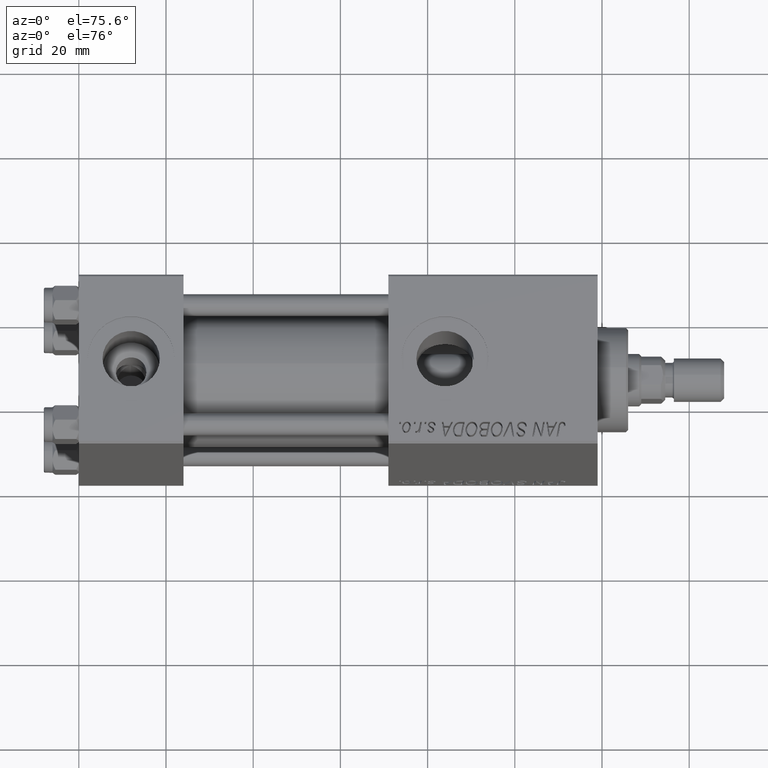
[diagram: clean part render]
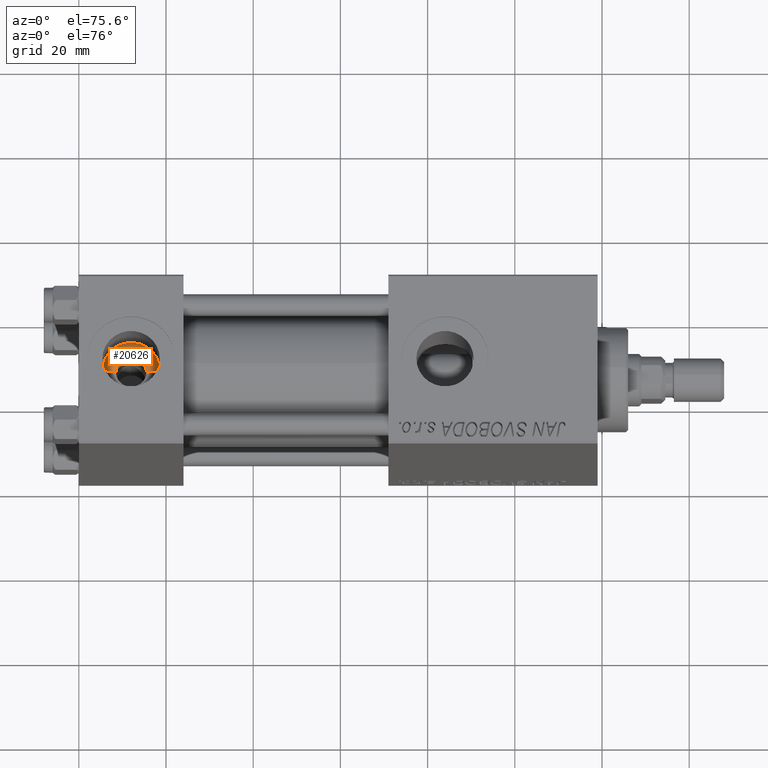
[diagram: same view with one face highlighted and labeled with its STEP entity id]
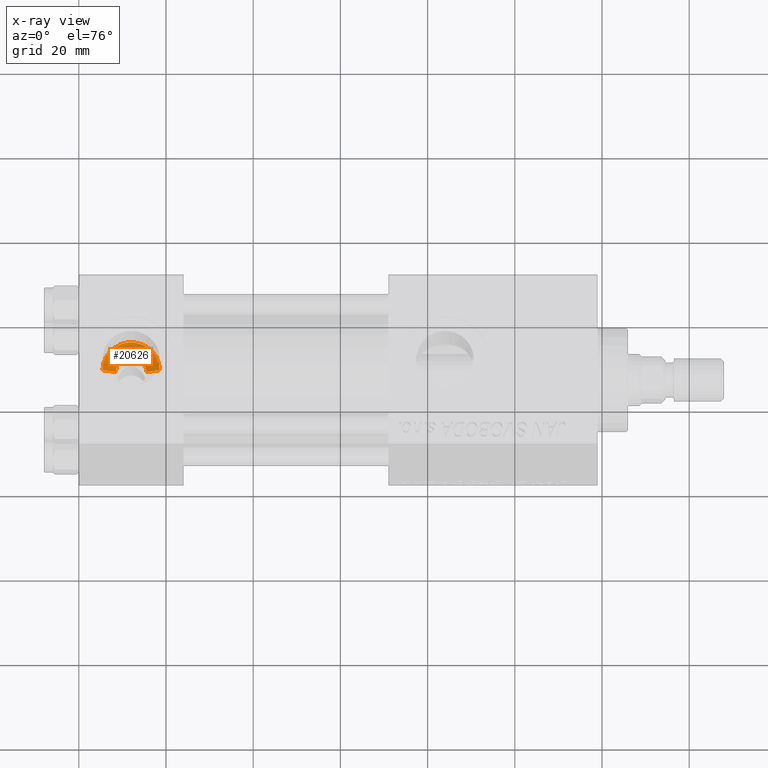
[diagram: x-ray of the same camera — body ghosted, the highlighted face saturated]
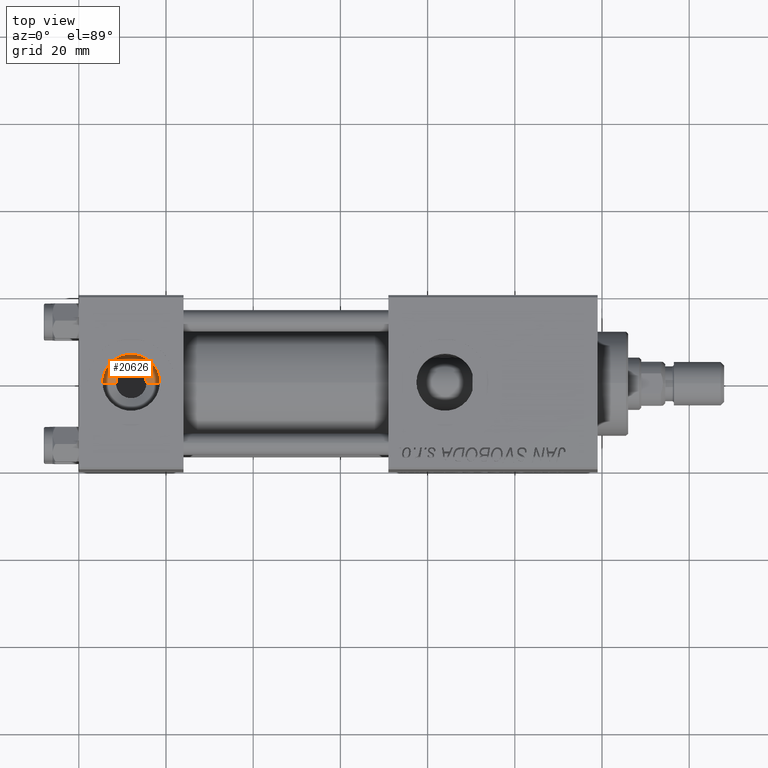
[diagram: same view with one face highlighted and labeled with its STEP entity id]
A machine part, auxiliary view. The second image highlights one B-rep face of the part: STEP entity #20626.
The next image is the same camera in x-ray: the body ghosted, the highlighted face saturated — about 0% of this face is hidden behind the body in this view.
A second angle (top view) of the same face is appended — the face is thin or edge-on in the first view.
In plain terms, the highlighted conical surface has half-angle 60.452 deg.
Its self-contained STEP definition (entity closure, byte-faithful):
#1808 = CIRCLE ( 'NONE', #10328, 6.579999999999999183 ) ;
#4128 = ORIENTED_EDGE ( 'NONE', *, *, #37716, .F. ) ;
#4518 = FACE_OUTER_BOUND ( 'NONE', #6045, .T. ) ;
#6045 = EDGE_LOOP ( 'NONE', ( #4128, #41883, #11054, #44567 ) ) ;
#7549 = CARTESIAN_POINT ( 'NONE',  ( 5.420000000000000817, 8.058175938389596335E-16, 9.165987261146492315 ) ) ;
#7982 = DIRECTION ( 'NONE',  ( 1.000000000000000000, 0.000000000000000000, 0.000000000000000000 ) ) ;
#9028 = CARTESIAN_POINT ( 'NONE',  ( 15.50000000000000000, 1.540743955509788682E-30, 7.419999999999996376 ) ) ;
#9152 = VERTEX_POINT ( 'NONE', #43090 ) ;
#10328 = AXIS2_PLACEMENT_3D ( 'NONE', #49463, #13000, #25223 ) ;
#10428 = DIRECTION ( 'NONE',  ( -0.8699429503561852961, 1.065372849594507103E-16, 0.4931523731318503412 ) ) ;
#11054 = ORIENTED_EDGE ( 'NONE', *, *, #44611, .T. ) ;
#11866 = VECTOR ( 'NONE', #10428, 1000.000000000000000 ) ;
#13000 = DIRECTION ( 'NONE',  ( -0.000000000000000000, -0.000000000000000000, -1.000000000000000000 ) ) ;
#13441 = VERTEX_POINT ( 'NONE', #19501 ) ;
#13709 = CIRCLE ( 'NONE', #43452, 3.499999999999999556 ) ;
#13732 = VECTOR ( 'NONE', #41465, 1000.000000000000000 ) ;
#14414 = CARTESIAN_POINT ( 'NONE',  ( 8.500000000000000000, 4.286263797015751879E-16, 7.419999999999996376 ) ) ;
#18233 = VERTEX_POINT ( 'NONE', #49064 ) ;
#19501 = CARTESIAN_POINT ( 'NONE',  ( 8.500000000000000000, 4.286263797015752865E-16, 7.419999999999996376 ) ) ;
#20626 = ADVANCED_FACE ( 'NONE', ( #4518 ), #30539, .F. ) ;
#22054 = DIRECTION ( 'NONE',  ( 1.000000000000000000, 0.000000000000000000, 0.000000000000000000 ) ) ;
#25202 = EDGE_CURVE ( 'NONE', #18233, #13441, #13709, .T. ) ;
#25223 = DIRECTION ( 'NONE',  ( 1.000000000000000000, 0.000000000000000000, 0.000000000000000000 ) ) ;
#27006 = LINE ( 'NONE', #9028, #13732 ) ;
#28456 = DIRECTION ( 'NONE',  ( 0.000000000000000000, 0.000000000000000000, 1.000000000000000000 ) ) ;
#30539 = CONICAL_SURFACE ( 'NONE', #43296, 3.499999999999999556, 1.055086625138361267 ) ;
#34836 = CARTESIAN_POINT ( 'NONE',  ( 12.00000000000000000, 1.540743955509788682E-30, 7.419999999999996376 ) ) ;
#37716 = EDGE_CURVE ( 'NONE', #13441, #43831, #42090, .T. ) ;
#40185 = CARTESIAN_POINT ( 'NONE',  ( 12.00000000000000000, 1.540743955509788682E-30, 7.419999999999996376 ) ) ;
#41465 = DIRECTION ( 'NONE',  ( 0.8699429503561852961, 0.000000000000000000, 0.4931523731318503412 ) ) ;
#41883 = ORIENTED_EDGE ( 'NONE', *, *, #25202, .F. ) ;
#42090 = LINE ( 'NONE', #14414, #11866 ) ;
#43090 = CARTESIAN_POINT ( 'NONE',  ( 18.57999999999999829, 1.540743955509788682E-30, 9.165987261146492315 ) ) ;
#43296 = AXIS2_PLACEMENT_3D ( 'NONE', #40185, #28456, #7982 ) ;
#43452 = AXIS2_PLACEMENT_3D ( 'NONE', #34836, #46286, #22054 ) ;
#43831 = VERTEX_POINT ( 'NONE', #7549 ) ;
#44567 = ORIENTED_EDGE ( 'NONE', *, *, #44667, .F. ) ;
#44611 = EDGE_CURVE ( 'NONE', #18233, #9152, #27006, .T. ) ;
#44667 = EDGE_CURVE ( 'NONE', #43831, #9152, #1808, .T. ) ;
#46286 = DIRECTION ( 'NONE',  ( 0.000000000000000000, 0.000000000000000000, 1.000000000000000000 ) ) ;
#49064 = CARTESIAN_POINT ( 'NONE',  ( 15.50000000000000000, 1.540743955509788682E-30, 7.419999999999996376 ) ) ;
#49463 = CARTESIAN_POINT ( 'NONE',  ( 12.00000000000000000, 1.540743955509788682E-30, 9.165987261146492315 ) ) ;